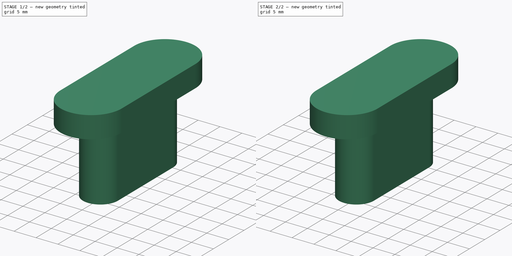
[diagram: build sequence overview — one tinted view per stage of 2, left to right]
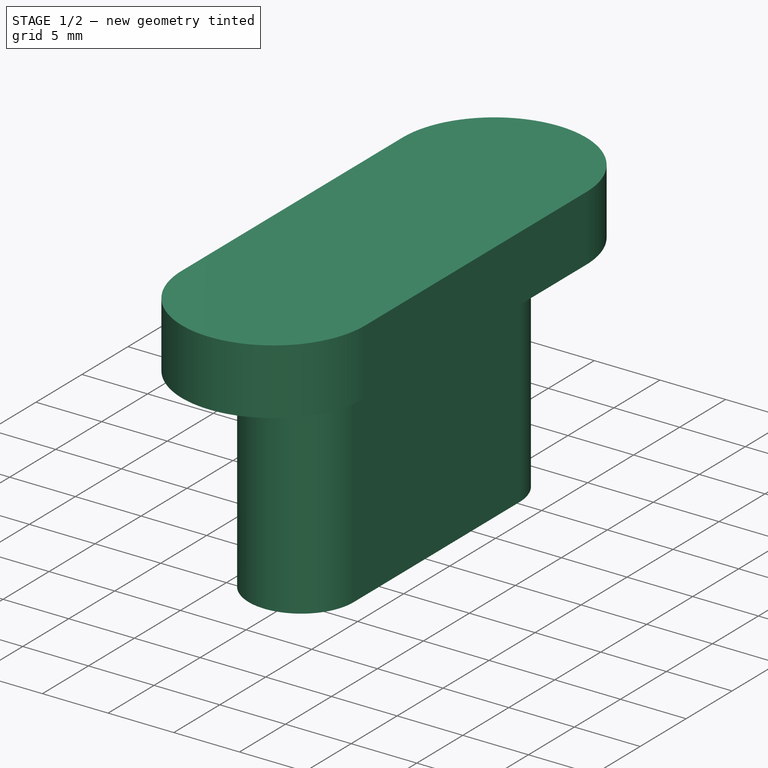
[diagram: stage 1 of 2 — iso view after this stage's code; geometry added in this stage tinted green]
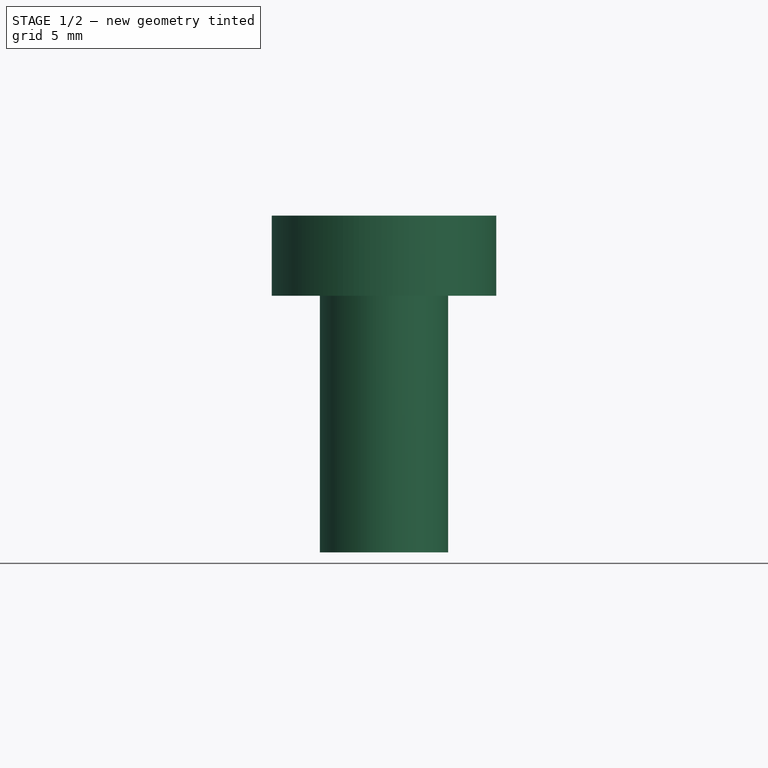
[diagram: stage 1 of 2 — front view after this stage's code; geometry added in this stage tinted green]
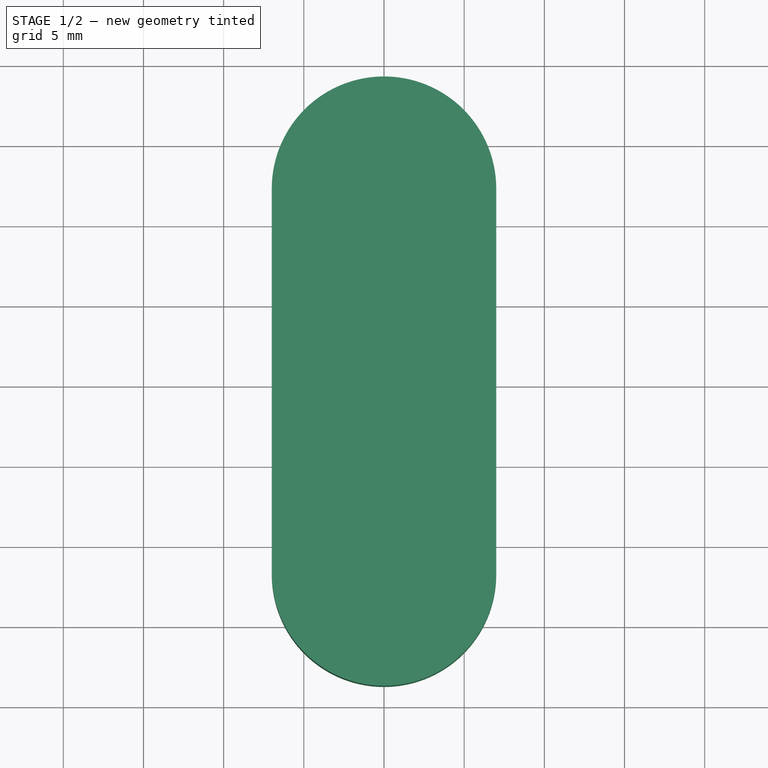
[diagram: stage 1 of 2 — top view after this stage's code; geometry added in this stage tinted green]
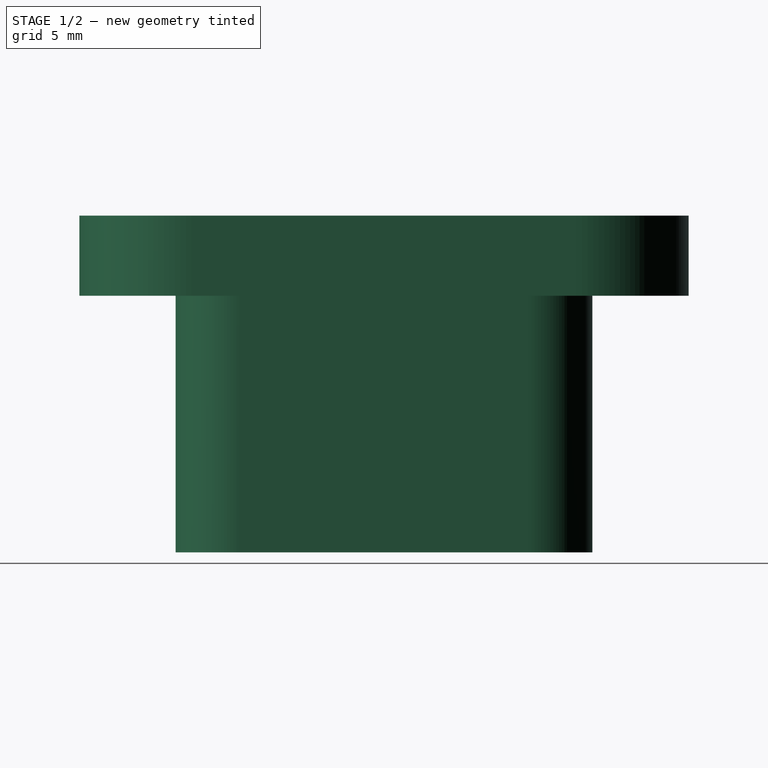
[diagram: stage 1 of 2 — right view after this stage's code; geometry added in this stage tinted green]
FCSTD DOCUMENT  (FreeCAD 0.19R24267 +148 (Git))
Label: HydroLidCap
License: All rights reserved
LicenseURL: http://en.wikipedia.org/wiki/All_rights_reserved
objects: Sketcher::SketchObject×2, Part::Extrusion×2, Spreadsheet::Sheet×1, Part::Fuse×1, App::Part×1
note: 5 computed .brp shape members not serialized (recipe doc carries the construction recipe); baked Part::Feature solids carry a one-line shape summary decoded from their .brp

FEATURE [Sketcher::SketchObject] Sketch005  label="watering_hole_bottom"
  FullyConstrained = true
  MapMode = 5
  expr: Constraints[6] = <<parameters>>.watering_hole_cap_bottom_length / 2
  expr: Constraints[7] = Spreadsheet.watering_hole_cap_bottom_length
  expr: Constraints[8] = <<parameters>>.watering_hole_cap_bottom_width
  sketch-geometry (4):
    g0: ArcOfCircle CenterX=-1e-16 CenterY=-9 CenterZ=0 NormalX=0 NormalY=0 NormalZ=1 AngleXU=0 Radius=4 StartAngle=3.14159 EndAngle=6.28319
    g1: ArcOfCircle CenterX=0 CenterY=9 CenterZ=0 NormalX=0 NormalY=0 NormalZ=1 AngleXU=0 Radius=4 StartAngle=2e-16 EndAngle=3.14159
    g2: LineSegment StartX=4 StartY=-9 StartZ=0 EndX=4 EndY=9 EndZ=0
    g3: LineSegment StartX=-4 StartY=-9 StartZ=0 EndX=-4 EndY=9 EndZ=0
  constraints (10):
    c: Tangent(g0,g3) = 1.5708
    c: Tangent(g0,g2) = -1.5708
    c: Tangent(g2,g1) = -1.5708
    c: Tangent(g3,g1) = 1.5708
    c: Vertical(g2)
    c: Equal(g0,g1)
    c: DistanceY(g-1,g1) = 9
    c: DistanceY(g0,g1) = 18
    c: DistanceX(g0,g0) = 8
    c: PointOnObject(g1,g-2)
FEATURE [Spreadsheet::Sheet] Spreadsheet  label="parameters"
  cells = A1=Variable Parameters; A2=watering_hole_width; B2(watering_hole_width)==10mm; A3=watering_hole_length; B3(watering_hole_length)==20mm; A4=hexagon_body_height; B4(hexagon_body_height)==16mm; A5=watering_hole_cap_top_extra; B5(watering_hole_cap_top_extra)==2mm; A6=watering_hole_cap_bottom_extra; B6(watering_hole_cap_bottom_extra)==1mm; A9=watering_hole_cap_top_height; B9(watering_hole_cap_top_height)==5mm; A10=watering_hole_cap_bottom_height; B10(watering_hole_cap_bottom_height)==hexagon_body_height; A11=watering_hole_cap_top_length; B11(watering_hole_cap_top_length)==watering_hole_length + 2 * watering_hole_cap_top_extra; A12=watering_hole_cap_bottom_length; B12(watering_hole_cap_bottom_length)==watering_hole_length - 2 * watering_hole_cap_bottom_extra; A13=watering_hole_cap_top_width; B13(watering_hole_cap_top_width)==watering_hole_width + 2 * watering_hole_cap_top_extra; A14=watering_hole_cap_bottom_width; B14(watering_hole_cap_bottom_width)==watering_hole_width - 2 * watering_hole_cap_bottom_extra
FEATURE [Sketcher::SketchObject] Sketch006  label="watering_hole_cap_top"
  FullyConstrained = true
  MapMode = 5
  expr: Constraints[8] = <<parameters>>.watering_hole_cap_top_width
  expr: Constraints[7] = <<parameters>>.watering_hole_cap_top_length
  expr: Constraints[6] = <<parameters>>.watering_hole_cap_top_length / 2
  sketch-geometry (4):
    g0: ArcOfCircle CenterX=-2.37e-14 CenterY=-12 CenterZ=0 NormalX=0 NormalY=0 NormalZ=1 AngleXU=0 Radius=7 StartAngle=3.14159 EndAngle=6.28319
    g1: ArcOfCircle CenterX=0 CenterY=12 CenterZ=0 NormalX=0 NormalY=0 NormalZ=1 AngleXU=0 Radius=7 StartAngle=-7.99e-14 EndAngle=3.14159
    g2: LineSegment StartX=7 StartY=-12 StartZ=0 EndX=7 EndY=12 EndZ=0
    g3: LineSegment StartX=-7 StartY=-12 StartZ=0 EndX=-7 EndY=12 EndZ=0
  constraints (10):
    c: Tangent(g0,g3) = 1.5708
    c: Tangent(g0,g2) = -1.5708
    c: Tangent(g2,g1) = -1.5708
    c: Tangent(g3,g1) = 1.5708
    c: Vertical(g2)
    c: Equal(g0,g1)
    c: DistanceY(g-1,g1) = 12
    c: DistanceY(g0,g1) = 24
    c: DistanceX(g0,g0) = 14
    c: PointOnObject(g1,g-2)
FEATURE [Part::Extrusion] Extrude  label="cap_bottom_extrude"
  Base = -> Sketch005
  Dir = (0,0,1)
  DirMode = 2
  FaceMakerClass = Part::FaceMakerBullseye
  LengthFwd = 16
  LengthRev = 0
  Solid = true
  Symmetric = false
  expr: LengthFwd = <<parameters>>.watering_hole_cap_bottom_height
FEATURE [Part::Extrusion] Extrude001  label="cap_top_extrude"
  Base = -> Sketch006
  Dir = (0,0,1)
  DirMode = 2
  FaceMakerClass = Part::FaceMakerBullseye
  LengthFwd = 5
  LengthRev = 0
  Placement = pos=(0,0,16) rot=(0,0,1;0rad)
  Solid = true
  Symmetric = false
  expr: .Placement.Base.z = <<parameters>>.watering_hole_cap_bottom_height
  expr: LengthFwd = <<parameters>>.watering_hole_cap_top_height
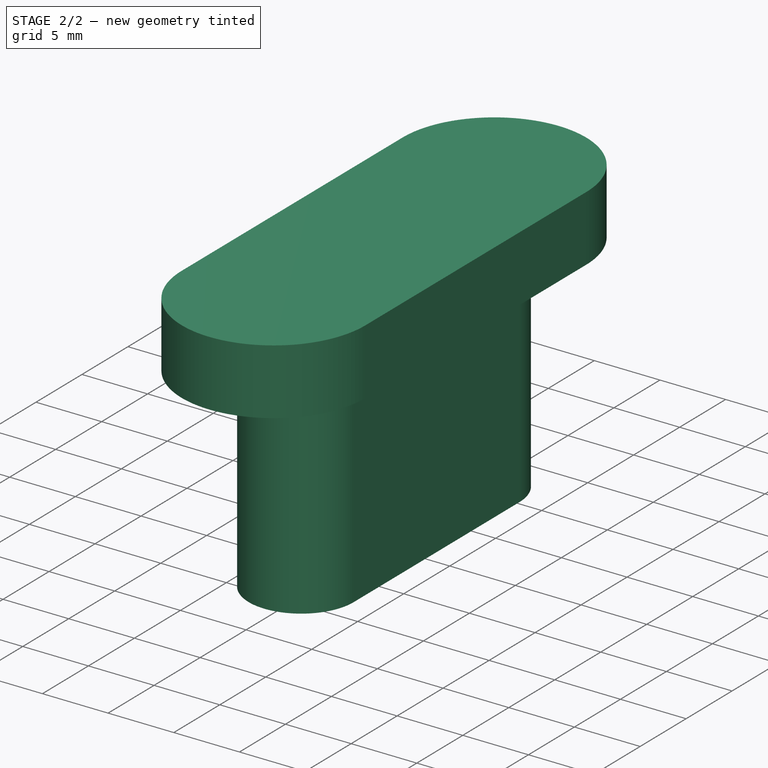
[diagram: stage 2 of 2 — iso view after this stage's code; geometry added in this stage tinted green]
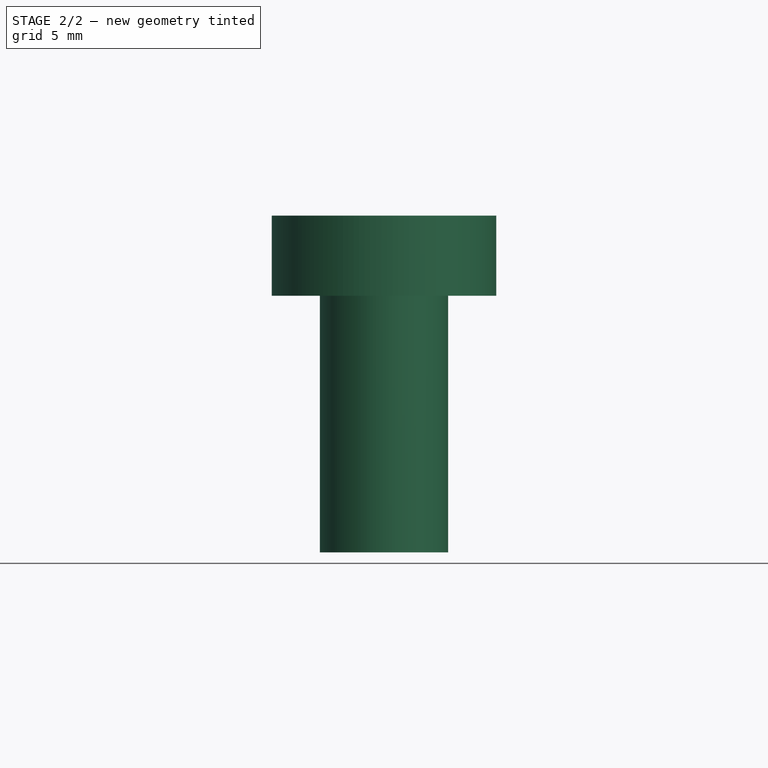
[diagram: stage 2 of 2 — front view after this stage's code; geometry added in this stage tinted green]
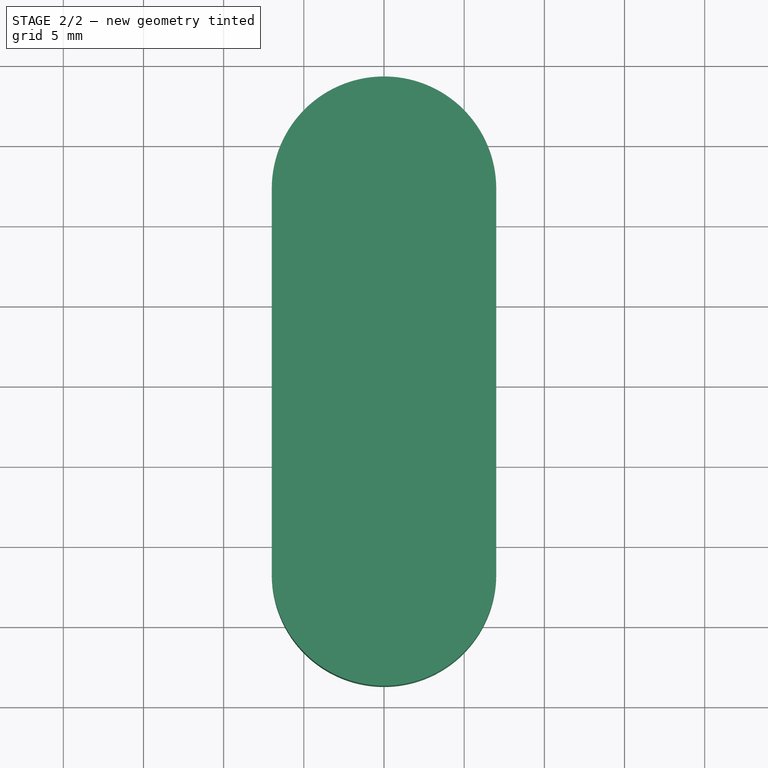
[diagram: stage 2 of 2 — top view after this stage's code; geometry added in this stage tinted green]
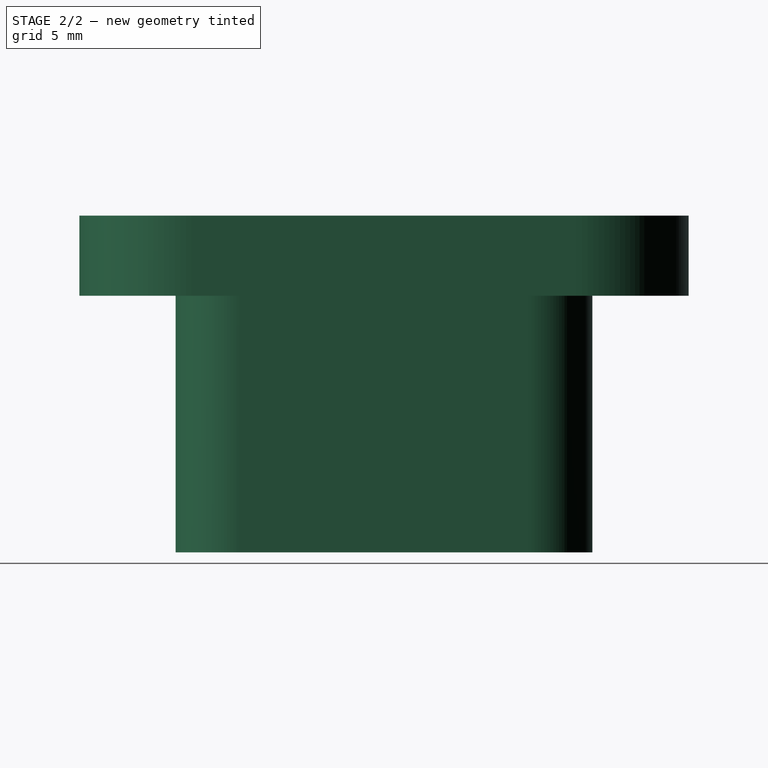
[diagram: stage 2 of 2 — right view after this stage's code; geometry added in this stage tinted green]
FEATURE [Part::Fuse] Fusion  label="cap_fuse"
  Base = -> Extrude
  Tool = -> Extrude001
FEATURE [App::Part] Part  label="HydroLidCap"
  Group = -> [Sketch006,Sketch005,Extrude001,Extrude,Fusion]
  Origin = -> Origin
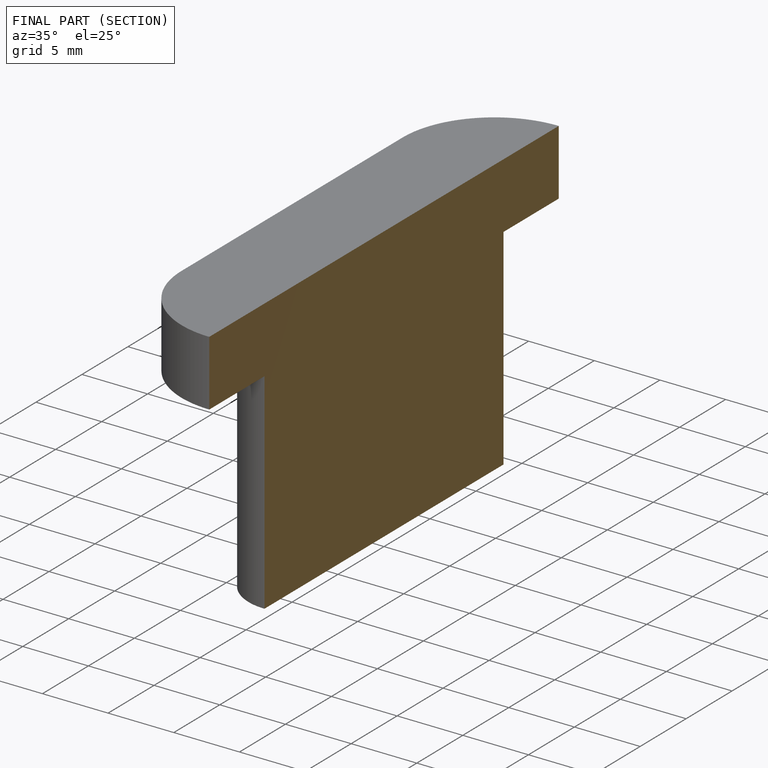
[diagram: finished part — half-section view (interior)]
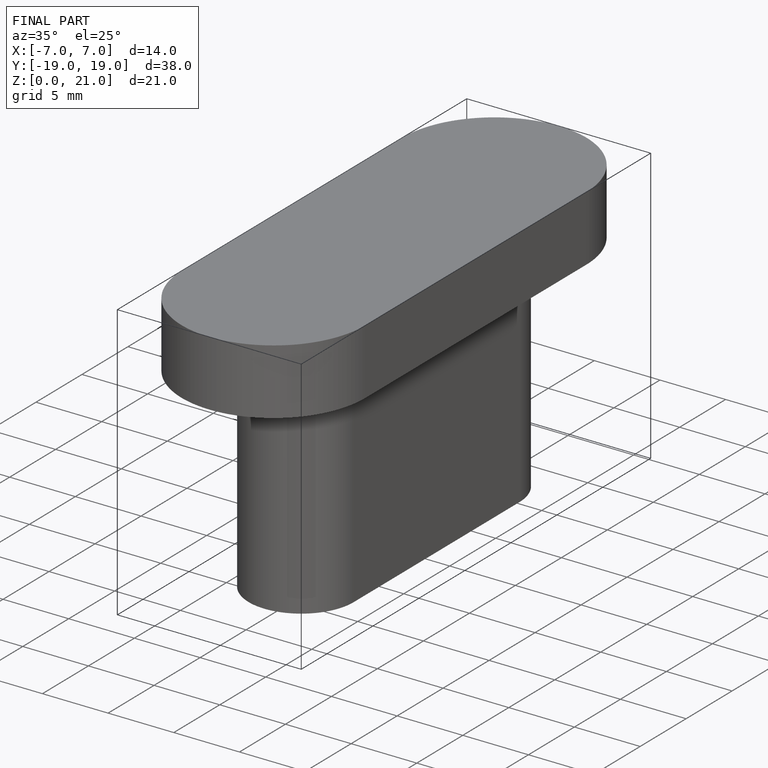
[diagram: finished part — iso view with bounding-box wireframe]
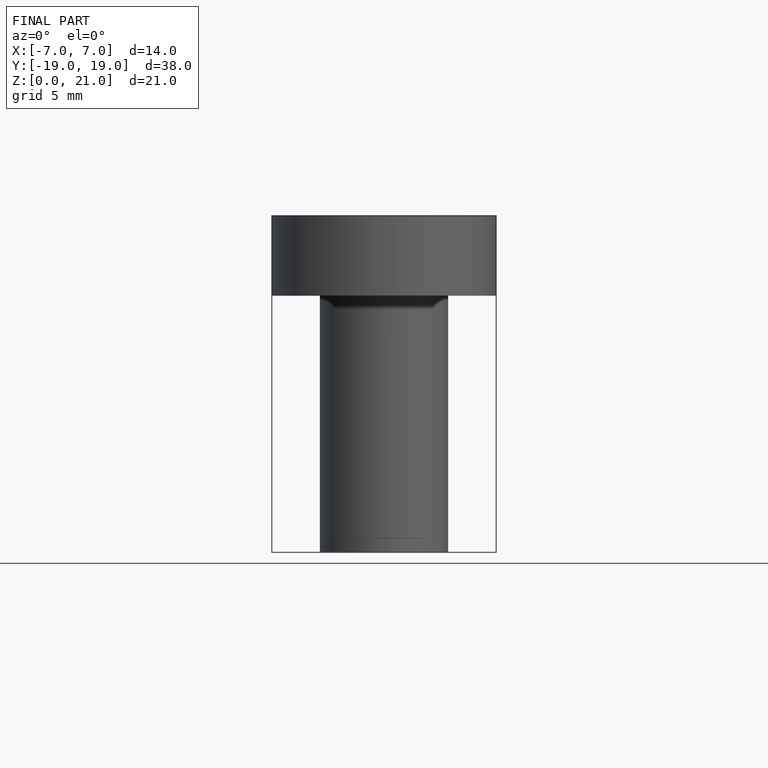
[diagram: finished part — front view with bounding-box wireframe]
